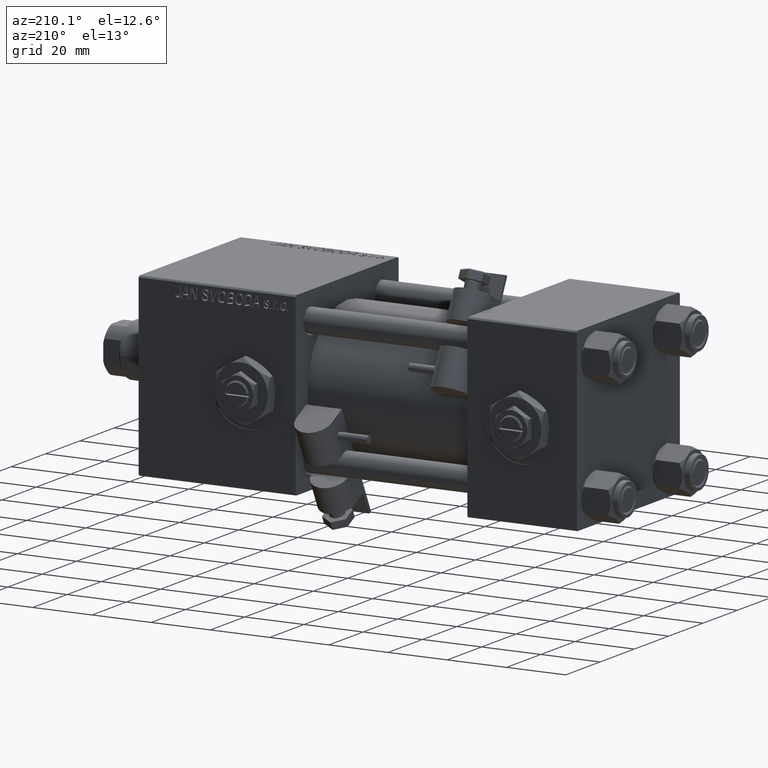
[diagram: clean part render]
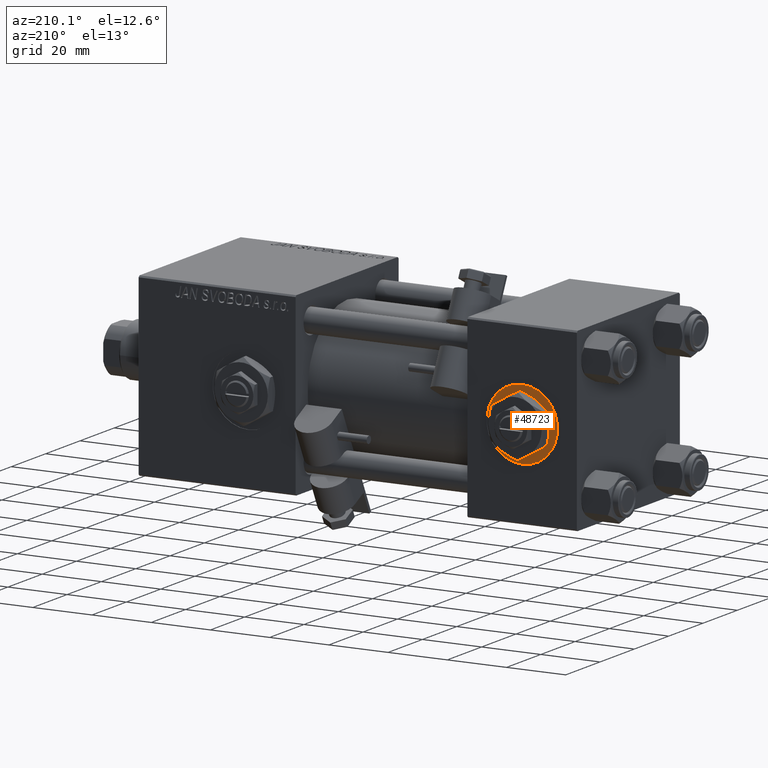
[diagram: same view with one face highlighted and labeled with its STEP entity id]
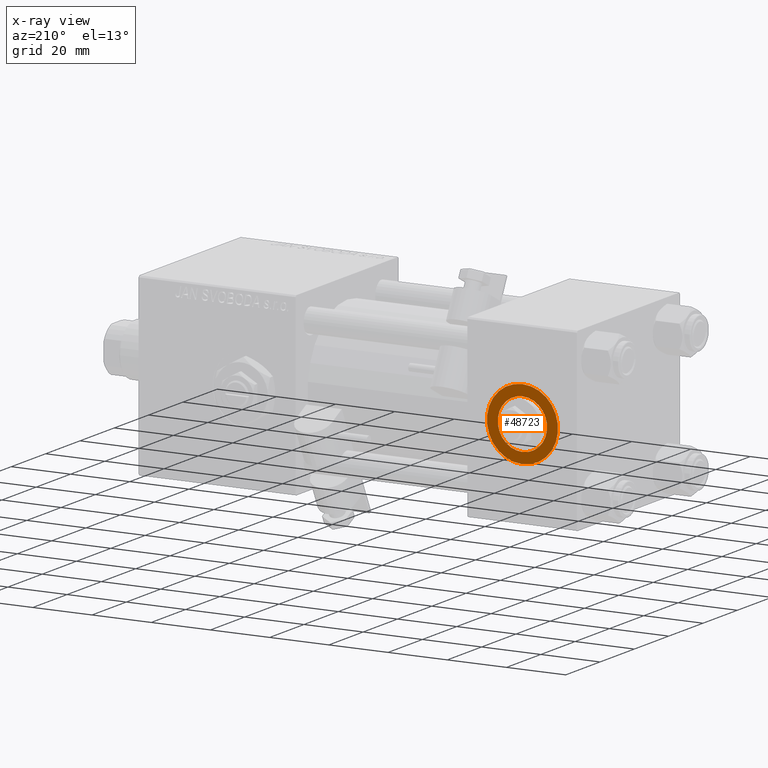
[diagram: x-ray of the same camera — body ghosted, the highlighted face saturated]
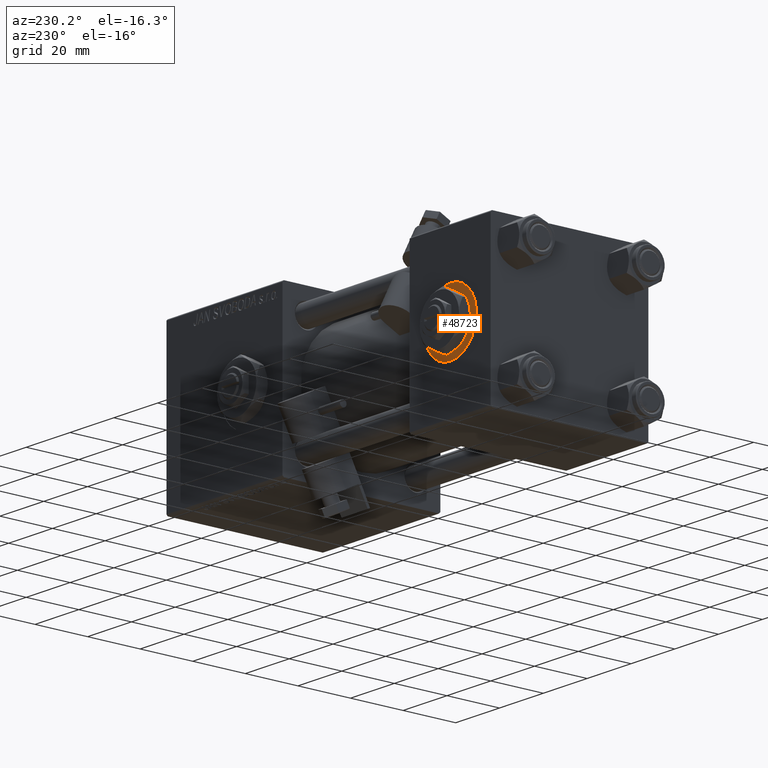
[diagram: same view with one face highlighted and labeled with its STEP entity id]
A machine part, auxiliary view. The second image highlights one B-rep face of the part: STEP entity #48723.
The next image is the same camera in x-ray: the body ghosted, the highlighted face saturated — about 0% of this face is hidden behind the body in this view.
A second angle (auxiliary view) of the same face is appended — the face is thin or edge-on in the first view.
In plain terms, the highlighted planar face has unit normal (0, 1, 0).
Its self-contained STEP definition (entity closure, byte-faithful):
#906 = VERTEX_POINT ( 'NONE', #26640 ) ;
#1544 = CARTESIAN_POINT ( 'NONE',  ( 18.50000000000000000, 29.79999999999999361, 12.00000000000000178 ) ) ;
#3341 = ORIENTED_EDGE ( 'NONE', *, *, #26765, .T. ) ;
#3409 = DIRECTION ( 'NONE',  ( 0.000000000000000000, 0.000000000000000000, 1.000000000000000000 ) ) ;
#4032 = DIRECTION ( 'NONE',  ( 0.000000000000000000, 1.000000000000000000, 0.000000000000000000 ) ) ;
#4474 = CARTESIAN_POINT ( 'NONE',  ( 18.50000000000000000, 29.79999999999999361, 0.000000000000000000 ) ) ;
#4623 = CARTESIAN_POINT ( 'NONE',  ( 18.50000000000000000, 29.79999999999999361, 8.330000000000001847 ) ) ;
#4736 = DIRECTION ( 'NONE',  ( 0.000000000000000000, 1.000000000000000000, 0.000000000000000000 ) ) ;
#5830 = AXIS2_PLACEMENT_3D ( 'NONE', #24034, #51823, #40456 ) ;
#6688 = AXIS2_PLACEMENT_3D ( 'NONE', #31448, #15807, #3409 ) ;
#7899 = VERTEX_POINT ( 'NONE', #1544 ) ;
#7980 = CIRCLE ( 'NONE', #23462, 8.330000000000001847 ) ;
#8428 = EDGE_LOOP ( 'NONE', ( #21380, #26735 ) ) ;
#10907 = EDGE_CURVE ( 'NONE', #7899, #11657, #23099, .T. ) ;
#11657 = VERTEX_POINT ( 'NONE', #33709 ) ;
#15807 = DIRECTION ( 'NONE',  ( 0.000000000000000000, 1.000000000000000000, 0.000000000000000000 ) ) ;
#15851 = VERTEX_POINT ( 'NONE', #4623 ) ;
#16298 = DIRECTION ( 'NONE',  ( 0.000000000000000000, 1.000000000000000000, 0.000000000000000000 ) ) ;
#17624 = CIRCLE ( 'NONE', #47771, 12.00000000000000178 ) ;
#18373 = EDGE_LOOP ( 'NONE', ( #22669, #3341 ) ) ;
#18863 = AXIS2_PLACEMENT_3D ( 'NONE', #37304, #16298, #28949 ) ;
#20837 = EDGE_CURVE ( 'NONE', #15851, #906, #7980, .T. ) ;
#21020 = CARTESIAN_POINT ( 'NONE',  ( 18.50000000000000000, 29.79999999999999361, 0.000000000000000000 ) ) ;
#21380 = ORIENTED_EDGE ( 'NONE', *, *, #20837, .F. ) ;
#22669 = ORIENTED_EDGE ( 'NONE', *, *, #10907, .T. ) ;
#23099 = CIRCLE ( 'NONE', #6688, 12.00000000000000178 ) ;
#23462 = AXIS2_PLACEMENT_3D ( 'NONE', #4474, #4736, #46521 ) ;
#24034 = CARTESIAN_POINT ( 'NONE',  ( 18.50000000000000000, 29.79999999999999361, 0.000000000000000000 ) ) ;
#26640 = CARTESIAN_POINT ( 'NONE',  ( 18.50000000000000000, 29.79999999999999361, -8.330000000000001847 ) ) ;
#26735 = ORIENTED_EDGE ( 'NONE', *, *, #39904, .F. ) ;
#26765 = EDGE_CURVE ( 'NONE', #11657, #7899, #17624, .T. ) ;
#28949 = DIRECTION ( 'NONE',  ( 0.000000000000000000, 0.000000000000000000, 1.000000000000000000 ) ) ;
#31448 = CARTESIAN_POINT ( 'NONE',  ( 18.50000000000000000, 29.79999999999999361, 0.000000000000000000 ) ) ;
#31858 = FACE_BOUND ( 'NONE', #8428, .T. ) ;
#33709 = CARTESIAN_POINT ( 'NONE',  ( 18.50000000000000000, 29.79999999999999361, -12.00000000000000178 ) ) ;
#37304 = CARTESIAN_POINT ( 'NONE',  ( 18.50000000000000000, 29.79999999999999361, 0.000000000000000000 ) ) ;
#37784 = CIRCLE ( 'NONE', #18863, 8.330000000000001847 ) ;
#39904 = EDGE_CURVE ( 'NONE', #906, #15851, #37784, .T. ) ;
#40456 = DIRECTION ( 'NONE',  ( 0.000000000000000000, -0.000000000000000000, 1.000000000000000000 ) ) ;
#41220 = DIRECTION ( 'NONE',  ( 0.000000000000000000, 0.000000000000000000, 1.000000000000000000 ) ) ;
#44510 = FACE_OUTER_BOUND ( 'NONE', #18373, .T. ) ;
#46521 = DIRECTION ( 'NONE',  ( 0.000000000000000000, 0.000000000000000000, 1.000000000000000000 ) ) ;
#47771 = AXIS2_PLACEMENT_3D ( 'NONE', #21020, #4032, #41220 ) ;
#48307 = PLANE ( 'NONE',  #5830 ) ;
#48723 = ADVANCED_FACE ( 'NONE', ( #31858, #44510 ), #48307, .T. ) ;
#51823 = DIRECTION ( 'NONE',  ( 0.000000000000000000, 1.000000000000000000, 0.000000000000000000 ) ) ;